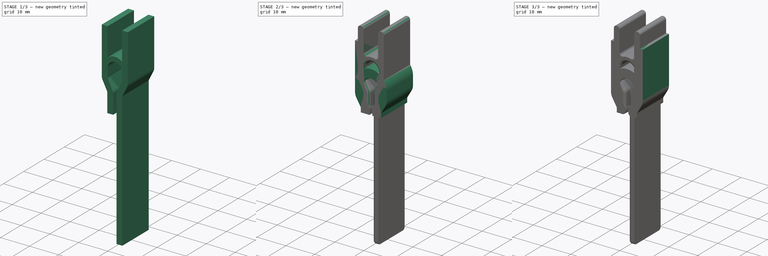
[diagram: build sequence overview — one tinted view per stage of 3, left to right]
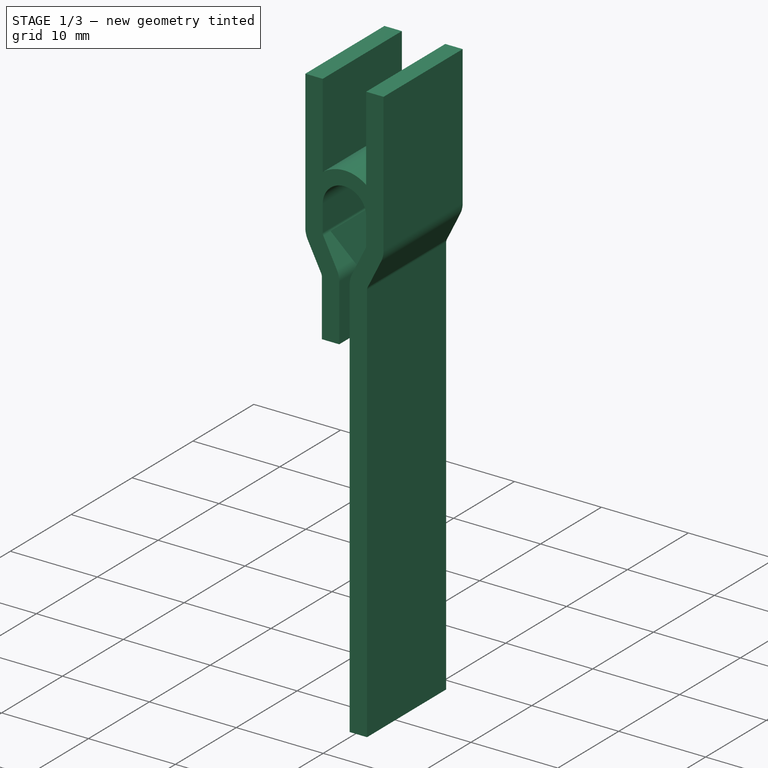
[diagram: stage 1 of 3 — iso view after this stage's code; geometry added in this stage tinted green]
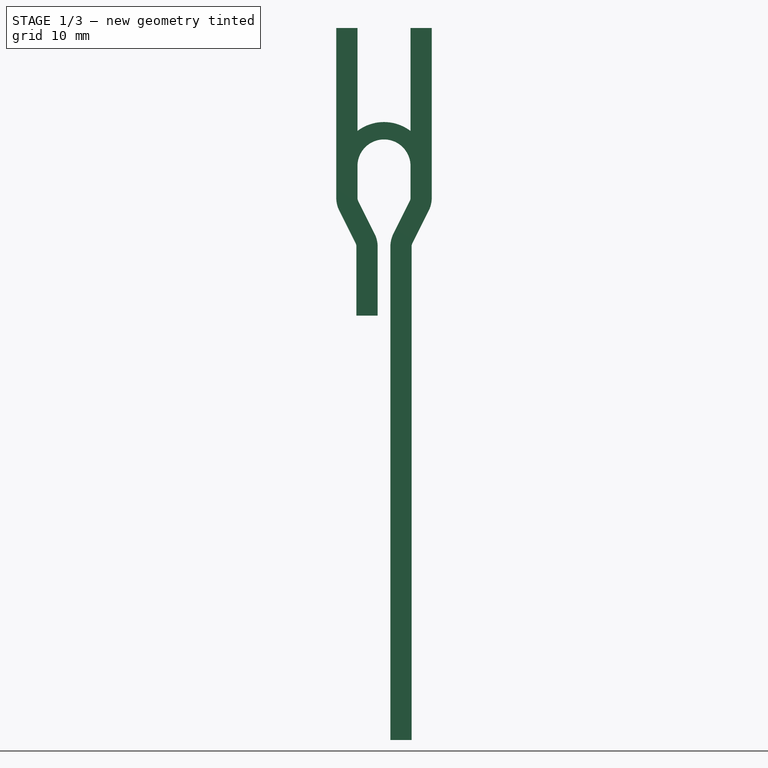
[diagram: stage 1 of 3 — front view after this stage's code; geometry added in this stage tinted green]
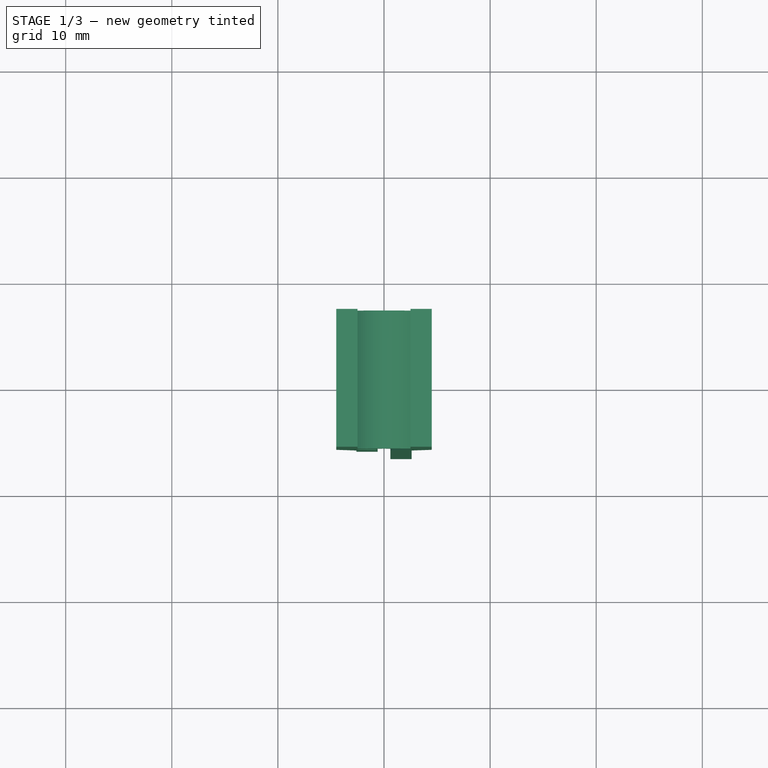
[diagram: stage 1 of 3 — top view after this stage's code; geometry added in this stage tinted green]
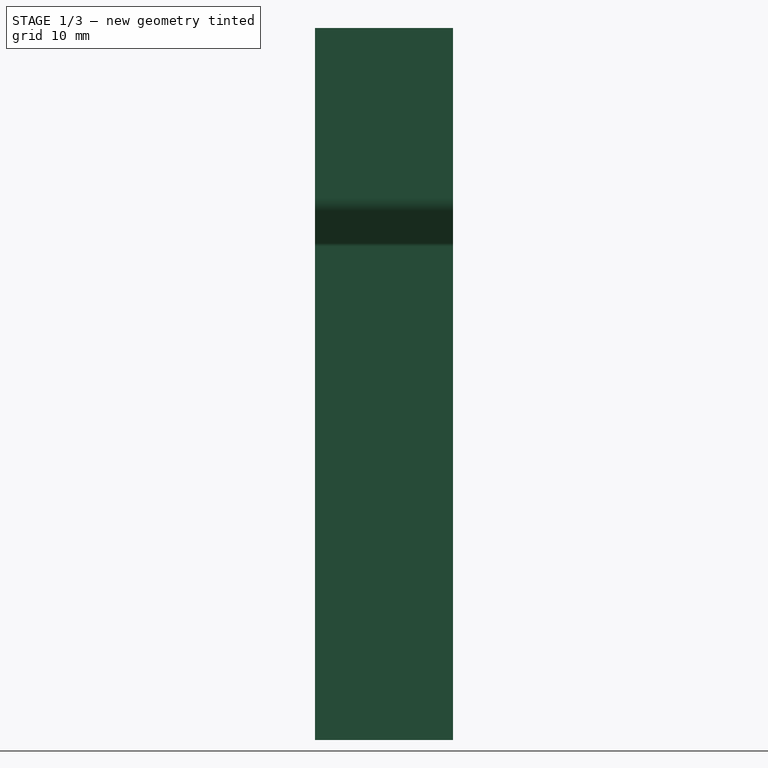
[diagram: stage 1 of 3 — right view after this stage's code; geometry added in this stage tinted green]
FCSTD DOCUMENT  (FreeCAD 0.18.4R)
Label: CurtainClip2
License: All rights reserved
LicenseURL: http://en.wikipedia.org/wiki/All_rights_reserved
objects: Sketcher::SketchObject×8, PartDesign::Plane×3, PartDesign::Pad×3, PartDesign::Fillet×2, PartDesign::Body×2, PartDesign::AdditivePipe×1, PartDesign::SubtractiveLoft×1
note: 25 computed .brp shape members not serialized (recipe doc carries the construction recipe); baked Part::Feature solids carry a one-line shape summary decoded from their .brp

FEATURE [PartDesign::Body] Body
  Group = -> [Sketch,Sketch001,AdditivePipe,DatumPlane,DatumPlane001,Sketch002,Pad,DatumPlane002,Sketch003,Pad001,Fillet]
  Origin = -> Origin
  Tip = -> Fillet
FEATURE [Sketcher::SketchObject] Sketch004
  MapMode = 5
  Placement = pos=(0,0,0) rot=(1,0,0;1.5708rad)
  Support = -> [XZ_Plane002]
  sketch-geometry (35):
    g0: LineSegment StartX=-2.5 StartY=17.4 StartZ=0 EndX=-2.5 EndY=27.1 EndZ=0
    g1: LineSegment StartX=-2.5 StartY=27.1 StartZ=0 EndX=-4.5 EndY=27.1 EndZ=0
    g2: LineSegment StartX=-4.5 StartY=27.1 StartZ=0 EndX=-4.5 EndY=11.1 EndZ=0
    g3: LineSegment StartX=-2.6 StartY=6.5 StartZ=0 EndX=-2.6 EndY=0 EndZ=0
    g4: LineSegment StartX=-2.6 StartY=0 StartZ=0 EndX=-0.6 EndY=0 EndZ=0
    g5: LineSegment StartX=-0.6 StartY=0 StartZ=0 EndX=-0.6 EndY=6.5 EndZ=0
    g6: LineSegment StartX=-2.5 StartY=11.1 StartZ=0 EndX=-2.5 EndY=14.1 EndZ=0
    g7: LineSegment StartX=2.5 StartY=17.4 StartZ=0 EndX=2.5 EndY=27.1 EndZ=0
    g8: LineSegment StartX=2.5 StartY=27.1 StartZ=0 EndX=4.5 EndY=27.1 EndZ=0
    g9: LineSegment StartX=4.5 StartY=27.1 StartZ=0 EndX=4.5 EndY=11.1 EndZ=0
    g10: LineSegment StartX=2.6 StartY=6.5 StartZ=0 EndX=2.6 EndY=-40 EndZ=0
    g11: LineSegment StartX=2.6 StartY=-40 StartZ=0 EndX=0.6 EndY=-40 EndZ=0
    g12: LineSegment StartX=0.6 StartY=-40 StartZ=0 EndX=0.6 EndY=6.5 EndZ=0
    g13: LineSegment StartX=2.5 StartY=11.1 StartZ=0 EndX=2.5 EndY=14.1 EndZ=0
    g14: ArcOfCircle CenterX=0 CenterY=14.1 CenterZ=0 NormalX=0 NormalY=0 NormalZ=1 AngleXU=0 Radius=2.5 StartAngle=1.3e-15 EndAngle=3.14159
    g15: ArcOfCircle CenterX=0 CenterY=14.1 CenterZ=0 NormalX=0 NormalY=0 NormalZ=1 AngleXU=0 Radius=4.14005 StartAngle=0.922464 EndAngle=2.21913
    g16: LineSegment [constr] StartX=-2.5 StartY=14.1 StartZ=0 EndX=-2.5 EndY=17.4 EndZ=0
    g17: LineSegment [constr] StartX=2.5 StartY=14.1 StartZ=0 EndX=2.5 EndY=17.4 EndZ=0
    g18: ArcOfCircle CenterX=-1.8 CenterY=11.1 CenterZ=0 NormalX=0 NormalY=0 NormalZ=1 AngleXU=0 Radius=0.7 StartAngle=3.14159 EndAngle=3.60558
    g19: ArcOfCircle CenterX=-3.3 CenterY=6.5 CenterZ=0 NormalX=0 NormalY=0 NormalZ=1 AngleXU=0 Radius=2.7 StartAngle=2e-16 EndAngle=0.463989
    g20: LineSegment StartX=-2.42599 StartY=10.7867 StartZ=0 EndX=-0.885459 EndY=7.7083 EndZ=0
    g21: ArcOfCircle CenterX=-3.3 CenterY=6.5 CenterZ=0 NormalX=0 NormalY=0 NormalZ=1 AngleXU=0 Radius=0.7 StartAngle=1e-16 EndAngle=0.463989
    g22: LineSegment [constr] StartX=-3.3 StartY=6.5 StartZ=0 EndX=-0.885459 EndY=7.7083 EndZ=0
    g23: LineSegment StartX=-2.67401 StartY=6.81326 StartZ=0 EndX=-4.21454 EndY=9.8917 EndZ=0
    g24: LineSegment [constr] StartX=-4.21454 StartY=9.8917 StartZ=0 EndX=-1.8 EndY=11.1 EndZ=0
    g25: ArcOfCircle CenterX=-1.8 CenterY=11.1 CenterZ=0 NormalX=0 NormalY=0 NormalZ=1 AngleXU=0 Radius=2.7 StartAngle=3.14159 EndAngle=3.60558
    g26: LineSegment [constr] StartX=-2.5 StartY=14.1 StartZ=0 EndX=2.5 EndY=14.1 EndZ=0
    g27: LineSegment [constr] StartX=2.5 StartY=11.1 StartZ=0 EndX=4.5 EndY=11.1 EndZ=0
    g28: ArcOfCircle CenterX=3.3 CenterY=6.5 CenterZ=0 NormalX=0 NormalY=0 NormalZ=1 AngleXU=0 Radius=0.7 StartAngle=2.6776 EndAngle=3.14159
    g29: LineSegment StartX=2.67401 StartY=6.81326 StartZ=0 EndX=4.21454 EndY=9.8917 EndZ=0
    g30: LineSegment StartX=0.885459 StartY=7.7083 StartZ=0 EndX=2.42599 EndY=10.7867 EndZ=0
    g31: ArcOfCircle CenterX=1.8 CenterY=11.1 CenterZ=0 NormalX=0 NormalY=0 NormalZ=1 AngleXU=0 Radius=0.7 StartAngle=5.8192 EndAngle=6.28319
    g32: ArcOfCircle CenterX=1.8 CenterY=11.1 CenterZ=0 NormalX=0 NormalY=0 NormalZ=1 AngleXU=0 Radius=2.7 StartAngle=5.8192 EndAngle=6.28319
    g33: ArcOfCircle CenterX=3.3 CenterY=6.5 CenterZ=0 NormalX=0 NormalY=0 NormalZ=1 AngleXU=0 Radius=2.7 StartAngle=2.6776 EndAngle=3.14159
    g34: LineSegment [constr] StartX=-1.8 StartY=11.1 StartZ=0 EndX=-4.5 EndY=11.1 EndZ=0
  constraints (94):
    c: Vertical(g0)
    c: Coincident(g0,g1)
    c: Horizontal(g1)
    c: Coincident(g1,g2)
    c: Vertical(g2)
    c: PointOnObject(g3,g-1)
    c: Vertical(g3)
    c: Coincident(g3,g4)
    c: PointOnObject(g4,g-1)
    c: Coincident(g4,g5)
    c: Vertical(g5)
    c: Vertical(g6)
    c: Vertical(g7)
    c: Coincident(g7,g8)
    c: Horizontal(g8)
    c: Coincident(g8,g9)
    c: Vertical(g9)
    c: Vertical(g10)
    c: Coincident(g10,g11)
    c: Coincident(g11,g12)
    c: Vertical(g12)
    c: Vertical(g13)
    c: PointOnObject(g14,g-2)
    c: Coincident(g14,g6)
    c: Coincident(g14,g13)
    c: Coincident(g15,g7)
    c: Coincident(g15,g0)
    c: Coincident(g14,g15)
    c: Coincident(g16,g6)
    c: Coincident(g16,g0)
    c: Coincident(g17,g13)
    c: Coincident(g17,g7)
    c: Vertical(g17)
    c: Vertical(g16)
    c: Radius(g14) = 2.5
    c: Tangent(g5,g19) = -1.5708
    c: DistanceX(g1,g1) = 2
    c: Equal(g1,g8)
    c: Equal(g8,g11)
    c: Equal(g11,g4)
    c: Tangent(g18,g20) = -1.5708
    c: Tangent(g19,g20) = 1.5708
    c: DistanceX(g4,g11) = 1.2  'Gap'
    c: Equal(g3,g5)
    c: Coincident(g21,g19)
    c: Coincident(g22,g19)
    c: Coincident(g22,g19)
    c: PointOnObject(g21,g22)
    c: Coincident(g23,g21)
    c: Coincident(g24,g23)
    c: Coincident(g24,g18)
    c: PointOnObject(g18,g24)
    c: Radius(g18) = 0.7
    c: Coincident(g25,g18)
    c: Coincident(g25,g23)
    c: Equal(g21,g18)
    c: DistanceY(g2,g2) = 16
    c: Equal(g2,g9)
    c: Equal(g0,g7)
    c: DistanceY(g0,g0) = 9.7
    c: Coincident(g26,g6)
    c: Coincident(g26,g13)
    c: Horizontal(g26)
    c: PointOnObject(g14,g26)
    c: Coincident(g27,g13)
    c: Coincident(g27,g9)
    c: Horizontal(g27)
    c: Tangent(g10,g28) = -1.5708
    c: Equal(g28,g21)
    c: Equal(g12,g10)
    c: Coincident(g31,g13)
    c: Coincident(g32,g31)
    c: Coincident(g32,g9)
    c: Coincident(g33,g28)
    c: Coincident(g33,g12)
    c: Tangent(g30,g33) = 1.5708
    c: Tangent(g30,g31) = -1.5708
    c: Tangent(g29,g32) = -1.5708
    c: Tangent(g28,g29) = 1.5708
    c: Tangent(g25,g2) = -1.5708
    c: Coincident(g34,g18)
    c: Coincident(g34,g2)
    c: PointOnObject(g6,g34)
    c: Coincident(g18,g6)
    c: PointOnObject(g31,g27)
    c: Equal(g31,g18)
    c: Horizontal(g11)
    c: DistanceY(g3,g3) = 6.5  'TightHeight'
    c: Symmetric(g5,g12,g-2)
    c: DistanceY(g11,g3) = 40  'Downhang'
    c: DistanceY(g3,g2) = 4.6
    c: DistanceY(g3,g6) = 7.6
    c: Coincident(g21,g3)
    c: DistanceY(g3,g2) = 11.1  'GripHeight'
FEATURE [PartDesign::Pad] Pad002
  Length = 13
  Length2 = 100
  Midplane = true
  Placement = pos=(0,0,0) rot=(1,0,0;1.5708rad)
  Profile = -> Sketch004
  Type = 0
FEATURE [Sketcher::SketchObject] Sketch005
  AttachmentOffset = pos=(0,0,40) rot=(0,0,1;0rad)
  MapMode = 5
  Placement = pos=(0,0,-40) rot=(0,1,0;3.14159rad)
  Support = -> [XY_Plane002]
  expr: AttachmentOffset.Base.z = Sketch004.Constraints.Downhang
  expr: Constraints[17] = Sketch004.Constraints.Gap
  sketch-geometry (16):
    g0: LineSegment [constr] StartX=-1.6 StartY=2 StartZ=0 EndX=-0.6 EndY=2 EndZ=0
    g1: LineSegment StartX=1.6 StartY=2 StartZ=0 EndX=1.6 EndY=-2 EndZ=0
    g2: LineSegment [constr] StartX=1.6 StartY=-2 StartZ=0 EndX=0.6 EndY=-2 EndZ=0
    g3: LineSegment StartX=-1.6 StartY=-2 StartZ=0 EndX=-1.6 EndY=2 EndZ=0
    g4: LineSegment StartX=-0.6 StartY=3 StartZ=0 EndX=0.6 EndY=3 EndZ=0
    g5: LineSegment [constr] StartX=0.6 StartY=3 StartZ=0 EndX=0.6 EndY=2 EndZ=0
    g6: LineSegment StartX=0.6 StartY=-3 StartZ=0 EndX=-0.6 EndY=-3 EndZ=0
    g7: LineSegment [constr] StartX=-0.6 StartY=-3 StartZ=0 EndX=-0.6 EndY=-2 EndZ=0
    g8: LineSegment [constr] StartX=-0.6 StartY=2 StartZ=0 EndX=-0.6 EndY=3 EndZ=0
    g9: LineSegment [constr] StartX=0.6 StartY=-2 StartZ=0 EndX=0.6 EndY=-3 EndZ=0
    g10: LineSegment [constr] StartX=0.6 StartY=2 StartZ=0 EndX=1.6 EndY=2 EndZ=0
    g11: LineSegment [constr] StartX=-0.6 StartY=-2 StartZ=0 EndX=-1.6 EndY=-2 EndZ=0
    g12: LineSegment StartX=-1.6 StartY=2 StartZ=0 EndX=-0.6 EndY=3 EndZ=0
    g13: LineSegment StartX=0.6 StartY=3 StartZ=0 EndX=1.6 EndY=2 EndZ=0
    g14: LineSegment StartX=-1.6 StartY=-2 StartZ=0 EndX=-0.6 EndY=-3 EndZ=0
    g15: LineSegment StartX=0.6 StartY=-3 StartZ=0 EndX=1.6 EndY=-2 EndZ=0
  constraints (39):
    c: Coincident(g10,g1)
    c: Coincident(g1,g2)
    c: Coincident(g11,g3)
    c: Coincident(g3,g0)
    c: Horizontal(g0)
    c: Vertical(g1)
    c: Vertical(g3)
    c: DistanceY(g3,g3) = 4
    c: Coincident(g4,g5)
    c: Coincident(g9,g6)
    c: Coincident(g6,g7)
    c: Coincident(g8,g4)
    c: Horizontal(g4)
    c: Horizontal(g6)
    c: Vertical(g5)
    c: Vertical(g7)
    c: Symmetric(g6,g4,g-1)
    c: DistanceX(g4,g4) = 1.2
    c: Tangent(g7,g8)
    c: Tangent(g5,g9)
    c: Coincident(g0,g8)
    c: Coincident(g10,g5)
    c: Tangent(g0,g10)
    c: Coincident(g2,g9)
    c: Coincident(g11,g7)
    c: Tangent(g2,g11)
    c: Equal(g8,g7)
    c: Equal(g1,g3)
    c: Equal(g0,g8)
    c: Equal(g0,g10)
    c: Coincident(g12,g3)
    c: Coincident(g12,g4)
    c: Coincident(g13,g4)
    c: Coincident(g13,g1)
    c: Coincident(g14,g3)
    c: Coincident(g14,g6)
    c: Coincident(g15,g6)
    c: Coincident(g15,g1)
    c: DistanceX(g3,g4) = 1
FEATURE [Sketcher::SketchObject] Sketch006
  AttachmentOffset = pos=(0,0,-11.1) rot=(0,0,1;0rad)
  MapMode = 5
  Placement = pos=(0,0,11.1) rot=(0,1,0;3.14159rad)
  Support = -> [XY_Plane002]
  expr: AttachmentOffset.Base.z = -Sketch004.Constraints.GripHeight
  sketch-geometry (16):
    g0: LineSegment [constr] StartX=-2.5 StartY=5.5 StartZ=0 EndX=-0.5 EndY=5.5 EndZ=0
    g1: LineSegment StartX=2.5 StartY=5.5 StartZ=0 EndX=2.5 EndY=-5.5 EndZ=0
    g2: LineSegment [constr] StartX=2.5 StartY=-5.5 StartZ=0 EndX=0.5 EndY=-5.5 EndZ=0
    g3: LineSegment StartX=-2.5 StartY=-5.5 StartZ=0 EndX=-2.5 EndY=5.5 EndZ=0
    g4: LineSegment StartX=-0.5 StartY=7.5 StartZ=0 EndX=0.5 EndY=7.5 EndZ=0
    g5: LineSegment [constr] StartX=0.5 StartY=7.5 StartZ=0 EndX=0.5 EndY=5.5 EndZ=0
    g6: LineSegment StartX=0.5 StartY=-7.5 StartZ=0 EndX=-0.5 EndY=-7.5 EndZ=0
    g7: LineSegment [constr] StartX=-0.5 StartY=-7.5 StartZ=0 EndX=-0.5 EndY=-5.5 EndZ=0
    g8: LineSegment [constr] StartX=-0.5 StartY=5.5 StartZ=0 EndX=-0.5 EndY=7.5 EndZ=0
    g9: LineSegment [constr] StartX=0.5 StartY=-5.5 StartZ=0 EndX=0.5 EndY=-7.5 EndZ=0
    g10: LineSegment [constr] StartX=0.5 StartY=5.5 StartZ=0 EndX=2.5 EndY=5.5 EndZ=0
    g11: LineSegment [constr] StartX=-0.5 StartY=-5.5 StartZ=0 EndX=-2.5 EndY=-5.5 EndZ=0
    g12: LineSegment StartX=-2.5 StartY=5.5 StartZ=0 EndX=-0.5 EndY=7.5 EndZ=0
    g13: LineSegment StartX=0.5 StartY=7.5 StartZ=0 EndX=2.5 EndY=5.5 EndZ=0
    g14: LineSegment StartX=-2.5 StartY=-5.5 StartZ=0 EndX=-0.5 EndY=-7.5 EndZ=0
    g15: LineSegment StartX=0.5 StartY=-7.5 StartZ=0 EndX=2.5 EndY=-5.5 EndZ=0
  constraints (39):
    c: Coincident(g10,g1)
    c: Coincident(g1,g2)
    c: Coincident(g11,g3)
    c: Coincident(g3,g0)
    c: Horizontal(g0)
    c: Vertical(g1)
    c: Vertical(g3)
    c: DistanceY(g3,g3) = 11
    c: Coincident(g4,g5)
    c: Coincident(g9,g6)
    c: Coincident(g6,g7)
    c: Coincident(g8,g4)
    c: Horizontal(g4)
    c: Horizontal(g6)
    c: Vertical(g5)
    c: Vertical(g7)
    c: Symmetric(g6,g4,g-1)
    c: DistanceX(g4,g4) = 1
    c: Tangent(g7,g8)
    c: Tangent(g5,g9)
    c: Coincident(g0,g8)
    c: Coincident(g10,g5)
    c: Tangent(g0,g10)
    c: Coincident(g2,g9)
    c: Coincident(g11,g7)
    c: Tangent(g2,g11)
    c: Equal(g8,g7)
    c: Equal(g1,g3)
    c: DistanceX(g0,g1) = 5
    c: Equal(g0,g8)
    c: Equal(g0,g10)
    c: Coincident(g12,g3)
    c: Coincident(g12,g4)
    c: Coincident(g13,g4)
    c: Coincident(g13,g1)
    c: Coincident(g14,g3)
    c: Coincident(g14,g6)
    c: Coincident(g15,g6)
    c: Coincident(g15,g1)
FEATURE [Sketcher::SketchObject] Sketch007
  AttachmentOffset = pos=(0,0,-6.5) rot=(0,0,1;0rad)
  MapMode = 5
  Placement = pos=(0,0,6.5) rot=(0,1,0;3.14159rad)
  Support = -> [XY_Plane002]
  expr: AttachmentOffset.Base.z = -Sketch004.Constraints.TightHeight
  expr: Constraints[17] = Sketch004.Constraints.Gap
  sketch-geometry (16):
    g0: LineSegment [constr] StartX=-1.6 StartY=2 StartZ=0 EndX=-0.6 EndY=2 EndZ=0
    g1: LineSegment StartX=1.6 StartY=2 StartZ=0 EndX=1.6 EndY=-2 EndZ=0
    g2: LineSegment [constr] StartX=1.6 StartY=-2 StartZ=0 EndX=0.6 EndY=-2 EndZ=0
    g3: LineSegment StartX=-1.6 StartY=-2 StartZ=0 EndX=-1.6 EndY=2 EndZ=0
    g4: LineSegment StartX=-0.6 StartY=3 StartZ=0 EndX=0.6 EndY=3 EndZ=0
    g5: LineSegment [constr] StartX=0.6 StartY=3 StartZ=0 EndX=0.6 EndY=2 EndZ=0
    g6: LineSegment StartX=0.6 StartY=-3 StartZ=0 EndX=-0.6 EndY=-3 EndZ=0
    g7: LineSegment [constr] StartX=-0.6 StartY=-3 StartZ=0 EndX=-0.6 EndY=-2 EndZ=0
    g8: LineSegment [constr] StartX=-0.6 StartY=2 StartZ=0 EndX=-0.6 EndY=3 EndZ=0
    g9: LineSegment [constr] StartX=0.6 StartY=-2 StartZ=0 EndX=0.6 EndY=-3 EndZ=0
    g10: LineSegment [constr] StartX=0.6 StartY=2 StartZ=0 EndX=1.6 EndY=2 EndZ=0
    g11: LineSegment [constr] StartX=-0.6 StartY=-2 StartZ=0 EndX=-1.6 EndY=-2 EndZ=0
    g12: LineSegment StartX=-1.6 StartY=2 StartZ=0 EndX=-0.6 EndY=3 EndZ=0
    g13: LineSegment StartX=0.6 StartY=3 StartZ=0 EndX=1.6 EndY=2 EndZ=0
    g14: LineSegment StartX=-1.6 StartY=-2 StartZ=0 EndX=-0.6 EndY=-3 EndZ=0
    g15: LineSegment StartX=0.6 StartY=-3 StartZ=0 EndX=1.6 EndY=-2 EndZ=0
  constraints (39):
    c: Coincident(g10,g1)
    c: Coincident(g1,g2)
    c: Coincident(g11,g3)
    c: Coincident(g3,g0)
    c: Horizontal(g0)
    c: Vertical(g1)
    c: Vertical(g3)
    c: DistanceY(g3,g3) = 4
    c: Coincident(g4,g5)
    c: Coincident(g9,g6)
    c: Coincident(g6,g7)
    c: Coincident(g8,g4)
    c: Horizontal(g4)
    c: Horizontal(g6)
    c: Vertical(g5)
    c: Vertical(g7)
    c: Symmetric(g6,g4,g-1)
    c: DistanceX(g4,g4) = 1.2
    c: Tangent(g7,g8)
    c: Tangent(g5,g9)
    c: Coincident(g0,g8)
    c: Coincident(g10,g5)
    c: Tangent(g0,g10)
    c: Coincident(g2,g9)
    c: Coincident(g11,g7)
    c: Tangent(g2,g11)
    c: Equal(g8,g7)
    c: Equal(g1,g3)
    c: Equal(g0,g8)
    c: Equal(g0,g10)
    c: Coincident(g12,g3)
    c: Coincident(g12,g4)
    c: Coincident(g13,g4)
    c: Coincident(g13,g1)
    c: Coincident(g14,g3)
    c: Coincident(g14,g6)
    c: Coincident(g15,g6)
    c: Coincident(g15,g1)
    c: DistanceX(g3,g4) = 1
FEATURE [PartDesign::SubtractiveLoft] SubtractiveLoft
  BaseFeature = -> Pad002
  Closed = false
  Placement = pos=(0,0,0) rot=(1,0,0;1.5708rad)
  Profile = -> Sketch005
  Ruled = true
  Sections = -> [Sketch007,Sketch006]
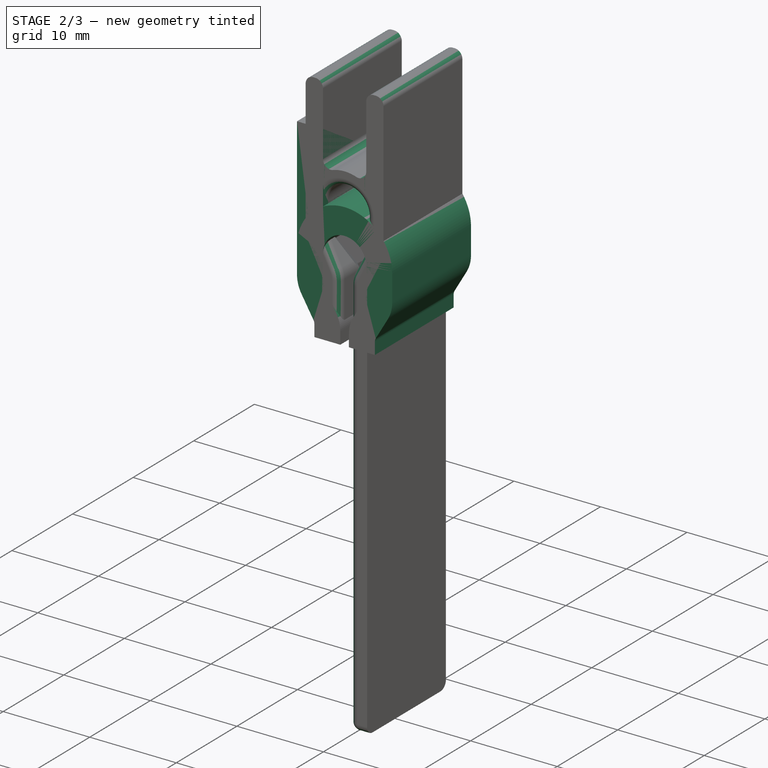
[diagram: stage 2 of 3 — iso view after this stage's code; geometry added in this stage tinted green]
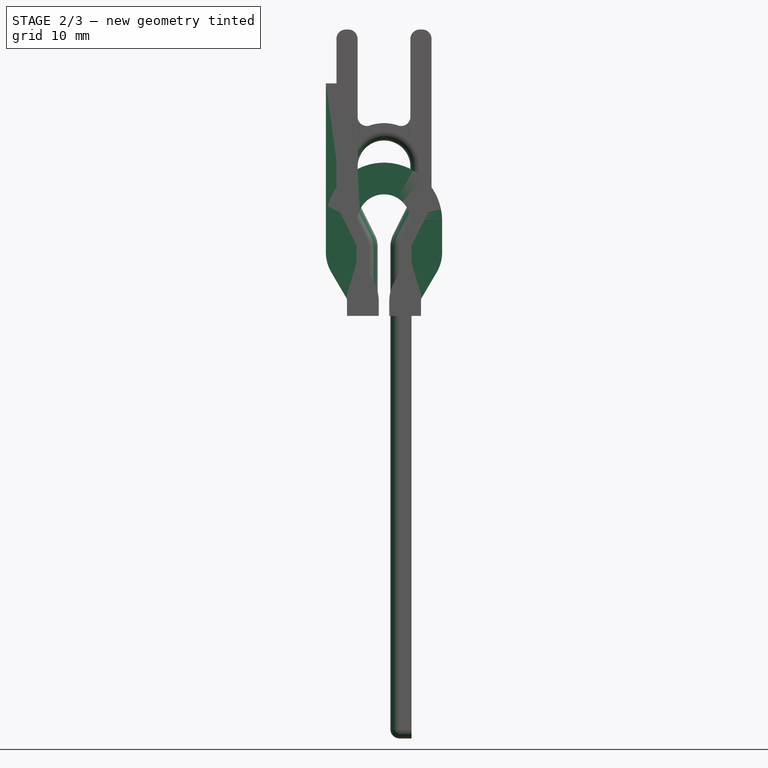
[diagram: stage 2 of 3 — front view after this stage's code; geometry added in this stage tinted green]
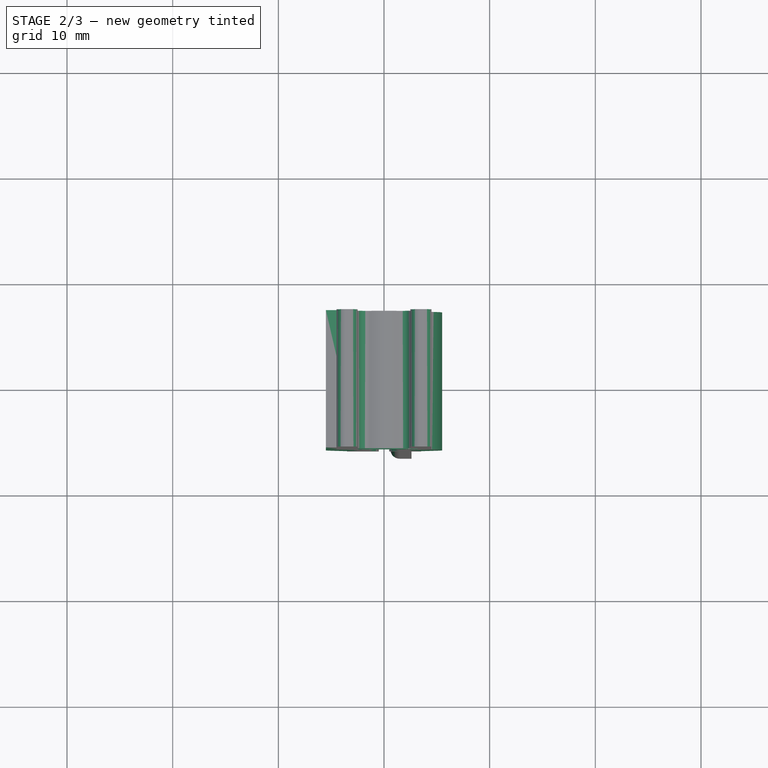
[diagram: stage 2 of 3 — top view after this stage's code; geometry added in this stage tinted green]
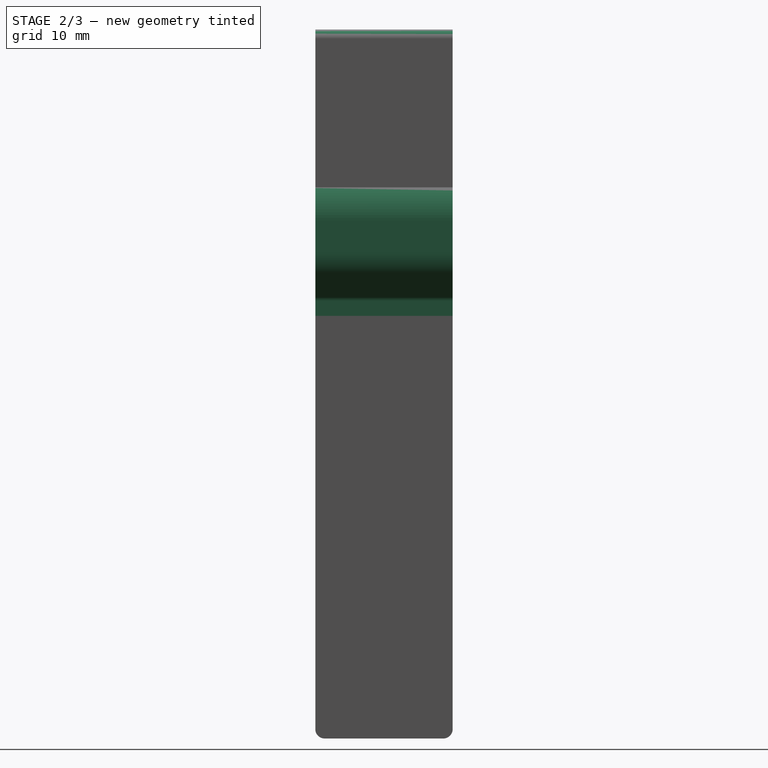
[diagram: stage 2 of 3 — right view after this stage's code; geometry added in this stage tinted green]
FEATURE [Sketcher::SketchObject] Sketch
  MapMode = 5
  Placement = pos=(0,0,0) rot=(1,0,0;1.5708rad)
  Support = -> [XZ_Plane]
  sketch-geometry (12):
    g0: LineSegment StartX=-2 StartY=0 StartZ=0 EndX=-2 EndY=1.4 EndZ=0
    g1: LineSegment StartX=-2.30337 StartY=2.5148 StartZ=0 EndX=-3.69663 EndY=4.8852 EndZ=0
    g2: LineSegment StartX=2 StartY=0 StartZ=0 EndX=2 EndY=1.4 EndZ=0
    g3: LineSegment StartX=2.30337 StartY=2.5148 StartZ=0 EndX=3.69663 EndY=4.8852 EndZ=0
    g4: ArcOfCircle CenterX=0 CenterY=9 CenterZ=0 NormalX=0 NormalY=0 NormalZ=1 AngleXU=0 Radius=4 StartAngle=2e-16 EndAngle=3.14159
    g5: ArcOfCircle CenterX=-4.2 CenterY=1.4 CenterZ=0 NormalX=0 NormalY=0 NormalZ=1 AngleXU=0 Radius=2.2 StartAngle=0 EndAngle=0.531384
    g6: ArcOfCircle CenterX=4.2 CenterY=1.4 CenterZ=0 NormalX=0 NormalY=0 NormalZ=1 AngleXU=0 Radius=2.2 StartAngle=2.61021 EndAngle=3.14159
    g7: GeomPoint X=0 Y=13 Z=0
    g8: LineSegment StartX=-4 StartY=6 StartZ=0 EndX=-4 EndY=9 EndZ=0
    g9: LineSegment StartX=4 StartY=6 StartZ=0 EndX=4 EndY=9 EndZ=0
    g10: ArcOfCircle CenterX=-1.8 CenterY=6 CenterZ=0 NormalX=0 NormalY=0 NormalZ=1 AngleXU=0 Radius=2.2 StartAngle=3.14159 EndAngle=3.67298
    g11: ArcOfCircle CenterX=1.8 CenterY=6 CenterZ=0 NormalX=0 NormalY=0 NormalZ=1 AngleXU=0 Radius=2.2 StartAngle=5.7518 EndAngle=6.28319
  constraints (30):
    c: Vertical(g0)
    c: Vertical(g2)
    c: Equal(g3,g1)
    c: Symmetric(g0,g2,g-1)
    c: Equal(g0,g2)
    c: Tangent(g0,g5) = -1.5708
    c: Tangent(g1,g5) = -1.5708
    c: Tangent(g2,g6) = 1.5708
    c: Tangent(g3,g6) = 1.5708
    c: Equal(g5,g6)
    c: PointOnObject(g4,g-2)
    c: DistanceX(g0,g2) = 4
    c: PointOnObject(g7,g-2)
    c: PointOnObject(g7,g4)
    c: PointOnObject(g0,g-1)
    c: Vertical(g8)
    c: Vertical(g9)
    c: Tangent(g9,g4) = -1.5708
    c: Tangent(g8,g4) = 1.5708
    c: DistanceX(g4,g4) = 8
    c: Tangent(g1,g10) = 1.5708
    c: Tangent(g8,g10) = 1.5708
    c: Tangent(g3,g11) = -1.5708
    c: Tangent(g9,g11) = -1.5708
    c: Equal(g10,g11)
    c: Equal(g11,g6)
    c: DistanceY(g0,g7) = 13
    c: DistanceY(g8,g8) = 3
    c: DistanceY(g0,g0) = 1.4
    c: Radius(g10) = 2.2
FEATURE [PartDesign::Plane] DatumPlane
  Length = 24
  MapMode = 7
  Placement = pos=(-2,0,0) rot=(0,1,0;3.14159rad)
  ResizeMode = 0
  Support = -> [Sketch]
  Width = 24
FEATURE [Sketcher::SketchObject] Sketch001
  MapMode = 5
  Placement = pos=(-2,0,0) rot=(0,1,0;3.14159rad)
  Support = -> [DatumPlane]
  sketch-geometry (8):
    g0: LineSegment StartX=-1.5 StartY=6.5 StartZ=0 EndX=1.5 EndY=6.5 EndZ=0
    g1: LineSegment StartX=1.5 StartY=6.5 StartZ=0 EndX=1.5 EndY=-6.5 EndZ=0
    g2: LineSegment StartX=1.5 StartY=-6.5 StartZ=0 EndX=-1.5 EndY=-6.5 EndZ=0
    g3: LineSegment StartX=-1.5 StartY=-6.5 StartZ=0 EndX=-1.5 EndY=-3.69679 EndZ=0
    g4: LineSegment StartX=-1.5 StartY=3.69679 StartZ=0 EndX=-1.5 EndY=6.5 EndZ=0
    g5: ArcOfCircle CenterX=-4.30543 CenterY=0 CenterZ=0 NormalX=0 NormalY=0 NormalZ=1 AngleXU=0 Radius=4.30543 StartAngle=5.51227 EndAngle=7.0541
    g6: ArcOfCircle CenterX=-0.5 CenterY=-3.69679 CenterZ=0 NormalX=0 NormalY=0 NormalZ=1 AngleXU=0 Radius=1 StartAngle=2.37067 EndAngle=3.14159
    g7: ArcOfCircle CenterX=-0.5 CenterY=3.69679 CenterZ=0 NormalX=0 NormalY=0 NormalZ=1 AngleXU=0 Radius=1 StartAngle=3.14159 EndAngle=3.91251
  constraints (21):
    c: Coincident(g0,g1)
    c: Coincident(g1,g2)
    c: Coincident(g2,g3)
    c: Coincident(g4,g0)
    c: Horizontal(g0)
    c: Horizontal(g2)
    c: Vertical(g1)
    c: Vertical(g3)
    c: DistanceY(g3,g4) = 13
    c: DistanceX(g0,g0) = 3
    c: Symmetric(g0,g1,g-1)
    c: Tangent(g3,g4)
    c: PointOnObject(g5,g-1)
    c: Equal(g7,g6)
    c: Tangent(g3,g6) = 1.5708
    c: Tangent(g5,g6) = 1.5708
    c: Tangent(g5,g7) = 1.5708
    c: Tangent(g4,g7) = 1.5708
    c: Radius(g7) = 1
    c: DistanceY(g5,g5) = 6
    c: PointOnObject(g-1,g5)
FEATURE [PartDesign::AdditivePipe] AdditivePipe
  AuxilleryCurvelinear = true
  AuxillerySpineTangent = false
  Binormal = (0,0,0)
  Mode = 0
  Placement = pos=(-2,0,0) rot=(0,1,0;3.14159rad)
  Profile = -> Sketch001
  Spine = -> Sketch
  SpineTangent = false
  Transformation = 1
  Transition = 0
FEATURE [PartDesign::Plane] DatumPlane001
  Length = 24
  MapMode = 7
  Placement = pos=(-4,1.3e-15,6) rot=(0,1,0;3.14159rad)
  ResizeMode = 0
  Support = -> [Sketch]
  Width = 24
FEATURE [Sketcher::SketchObject] Sketch002
  ExternalGeometry = -> [Sketch001]
  MapMode = 5
  Placement = pos=(-4,1.3e-15,6) rot=(0,1,0;3.14159rad)
  Support = -> [DatumPlane001]
  sketch-geometry (4):
    g0: LineSegment StartX=-1.5 StartY=6.5 StartZ=0 EndX=1.5 EndY=6.5 EndZ=0
    g1: LineSegment StartX=1.5 StartY=6.5 StartZ=0 EndX=1.5 EndY=-6.5 EndZ=0
    g2: LineSegment StartX=1.5 StartY=-6.5 StartZ=0 EndX=-1.5 EndY=-6.5 EndZ=0
    g3: LineSegment StartX=-1.5 StartY=-6.5 StartZ=0 EndX=-1.5 EndY=6.5 EndZ=0
  constraints (11):
    c: Coincident(g0,g1)
    c: Coincident(g1,g2)
    c: Coincident(g2,g3)
    c: Coincident(g3,g0)
    c: Horizontal(g0)
    c: Vertical(g1)
    c: Vertical(g3)
    c: Equal(g-3,g3)
    c: Equal(g3,g1)
    c: DistanceX(g0,g0) = 3
    c: Symmetric(g2,g0,g-1)
FEATURE [PartDesign::Pad] Pad
  BaseFeature = -> AdditivePipe
  Length = 16
  Length2 = 100
  Placement = pos=(-2,0,0) rot=(0,1,0;3.14159rad)
  Profile = -> Sketch002
  Reversed = true
  Type = 0
FEATURE [PartDesign::Fillet] Fillet001
  Base = -> SubtractiveLoft [Edge42,Edge72,Edge71,Edge70,Edge69,Edge68,Edge17,Edge54,Edge105,Edge104,Edge103,Edge102,Edge101,Edge29,Edge48,Edge23,Edge61,Edge5,Edge8,Edge62,Edge2,Edge1,Edge128,Edge120,Edge132,Edge100,Edge121,Edge125]
  BaseFeature = -> SubtractiveLoft
  Placement = pos=(0,0,0) rot=(1,0,0;1.5708rad)
  Radius = 0.88
FEATURE [PartDesign::Body] Body002
  Group = -> [Sketch004,Pad002,Sketch005,Sketch007,Sketch006,SubtractiveLoft,Fillet001]
  Origin = -> Origin002
  Tip = -> Fillet001
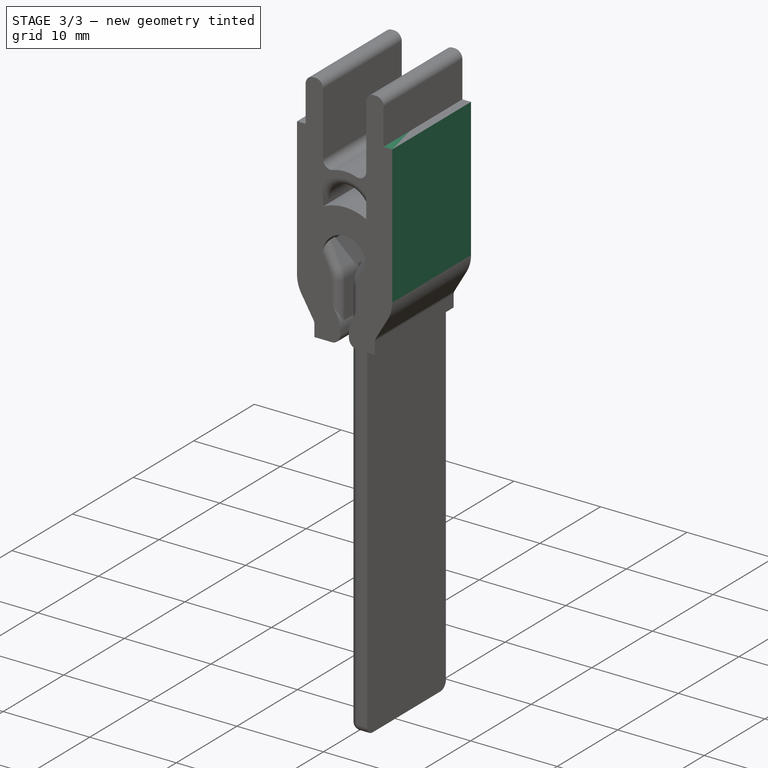
[diagram: stage 3 of 3 — iso view after this stage's code; geometry added in this stage tinted green]
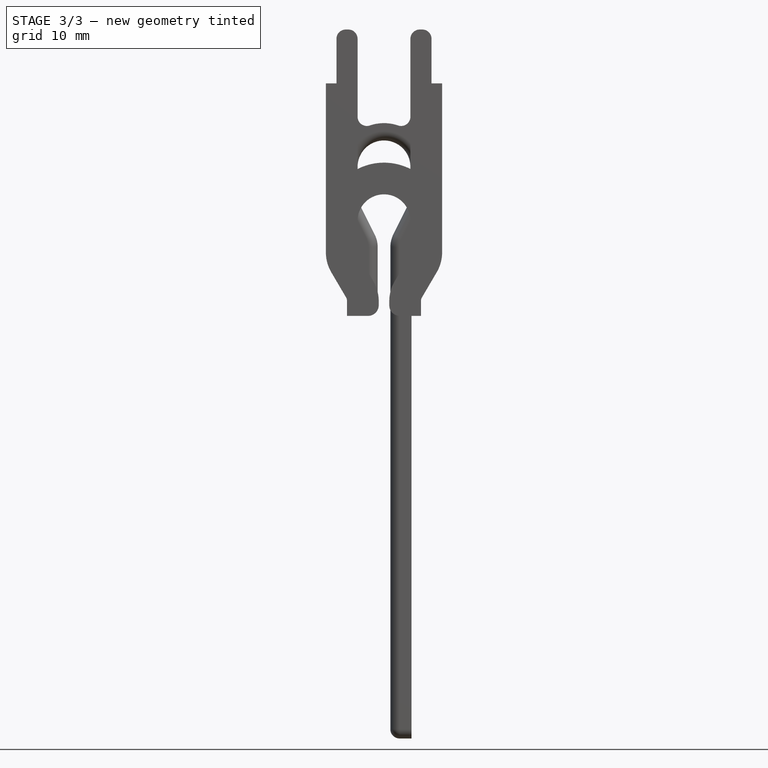
[diagram: stage 3 of 3 — front view after this stage's code; geometry added in this stage tinted green]
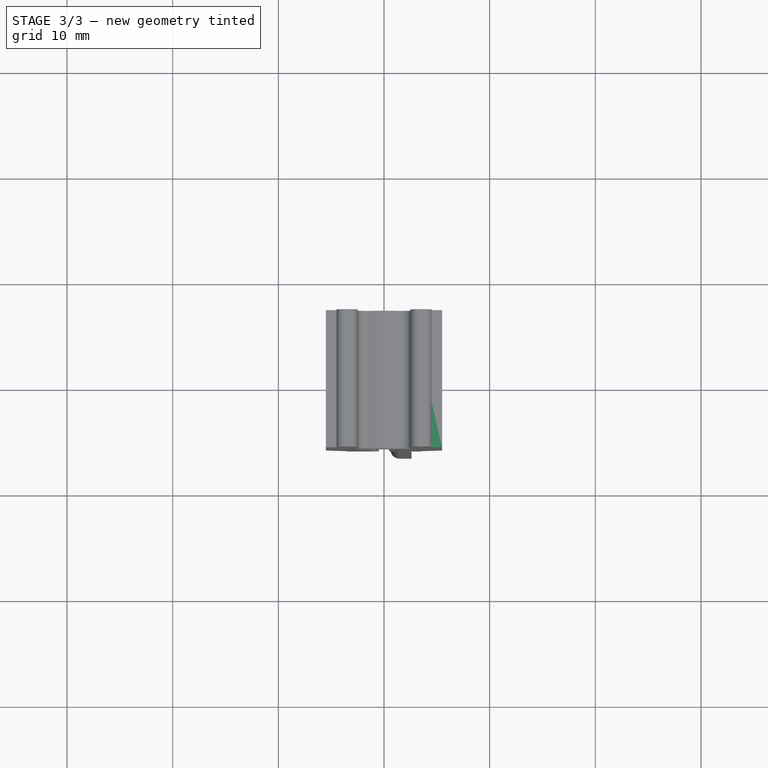
[diagram: stage 3 of 3 — top view after this stage's code; geometry added in this stage tinted green]
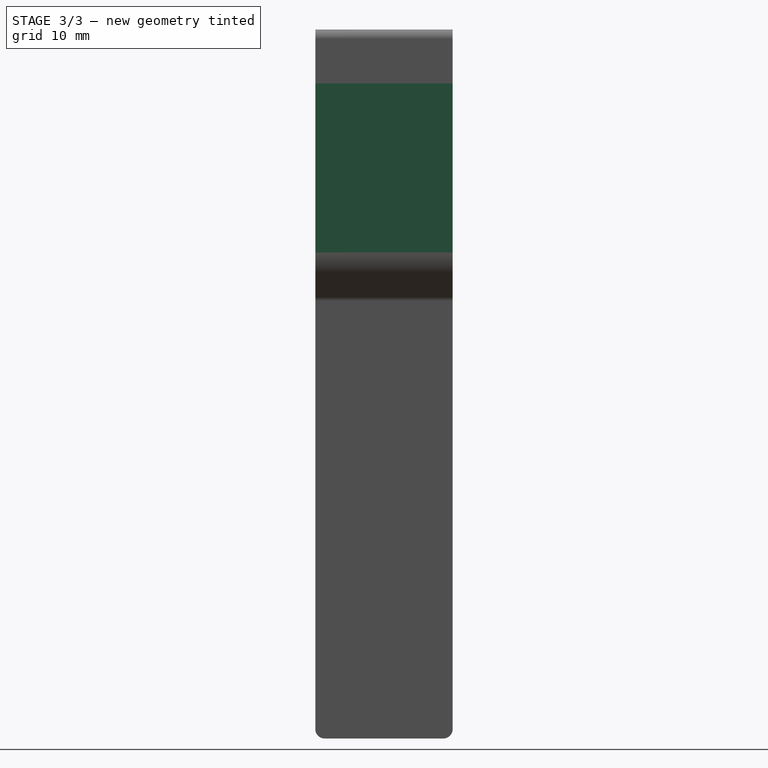
[diagram: stage 3 of 3 — right view after this stage's code; geometry added in this stage tinted green]
FEATURE [PartDesign::Plane] DatumPlane002
  Length = 24
  MapMode = 7
  Placement = pos=(4,1.3e-15,6) rot=(0,1,0;3.14159rad)
  ResizeMode = 0
  Support = -> [Sketch]
  Width = 24
FEATURE [Sketcher::SketchObject] Sketch003
  ExternalGeometry = -> [Sketch001]
  MapMode = 5
  Placement = pos=(4,1.3e-15,6) rot=(0,1,0;3.14159rad)
  Support = -> [DatumPlane002]
  sketch-geometry (4):
    g0: LineSegment StartX=-1.5 StartY=6.5 StartZ=0 EndX=1.5 EndY=6.5 EndZ=0
    g1: LineSegment StartX=1.5 StartY=6.5 StartZ=0 EndX=1.5 EndY=-6.5 EndZ=0
    g2: LineSegment StartX=1.5 StartY=-6.5 StartZ=0 EndX=-1.5 EndY=-6.5 EndZ=0
    g3: LineSegment StartX=-1.5 StartY=-6.5 StartZ=0 EndX=-1.5 EndY=6.5 EndZ=0
  constraints (11):
    c: Coincident(g0,g1)
    c: Coincident(g1,g2)
    c: Coincident(g2,g3)
    c: Coincident(g3,g0)
    c: Horizontal(g0)
    c: Horizontal(g2)
    c: Vertical(g1)
    c: Vertical(g3)
    c: Equal(g1,g-3)
    c: Symmetric(g0,g2,g-1)
    c: Equal(g-4,g0)
FEATURE [PartDesign::Pad] Pad001
  BaseFeature = -> Pad
  Length = 16
  Length2 = 100
  Placement = pos=(-2,0,0) rot=(0,1,0;3.14159rad)
  Profile = -> Sketch003
  Refine = true
  Reversed = true
  Type = 0
  expr: Length = Pad.Length
FEATURE [PartDesign::Fillet] Fillet
  Base = -> Pad001 [Edge7,Edge150]
  BaseFeature = -> Pad001
  Placement = pos=(-2,0,0) rot=(0,1,0;3.14159rad)
  Radius = 1
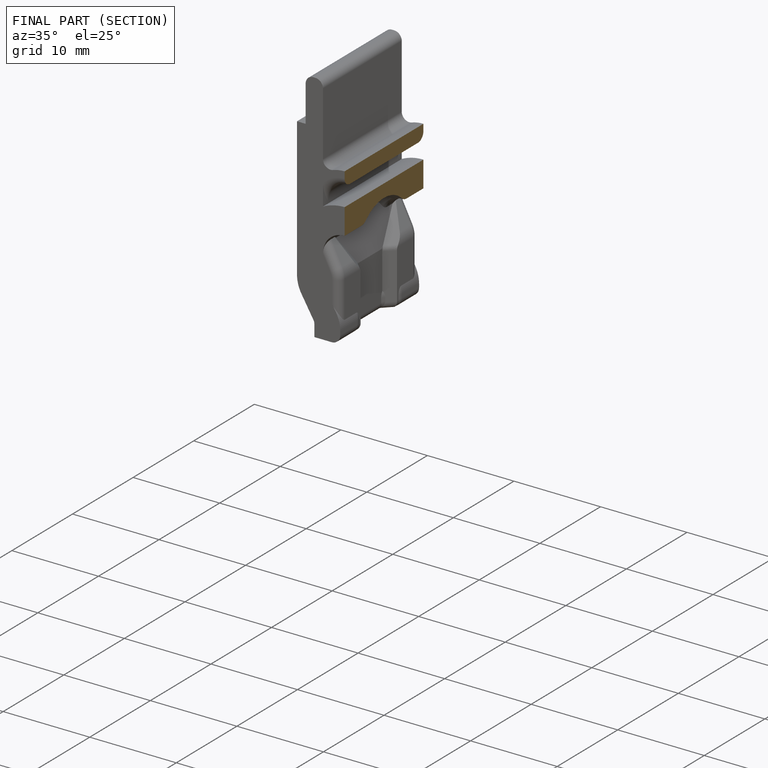
[diagram: finished part — half-section view (interior)]
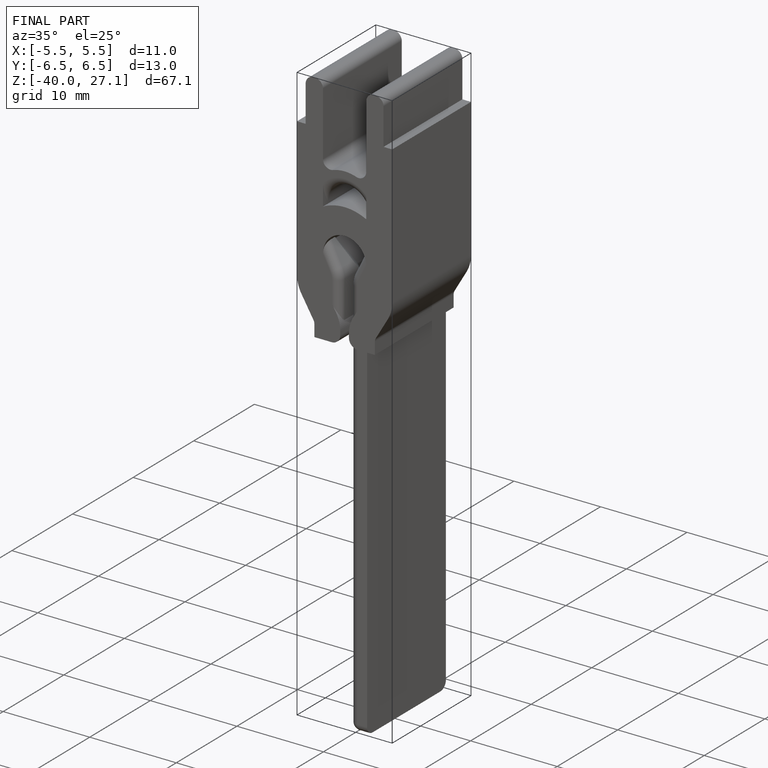
[diagram: finished part — iso view with bounding-box wireframe]
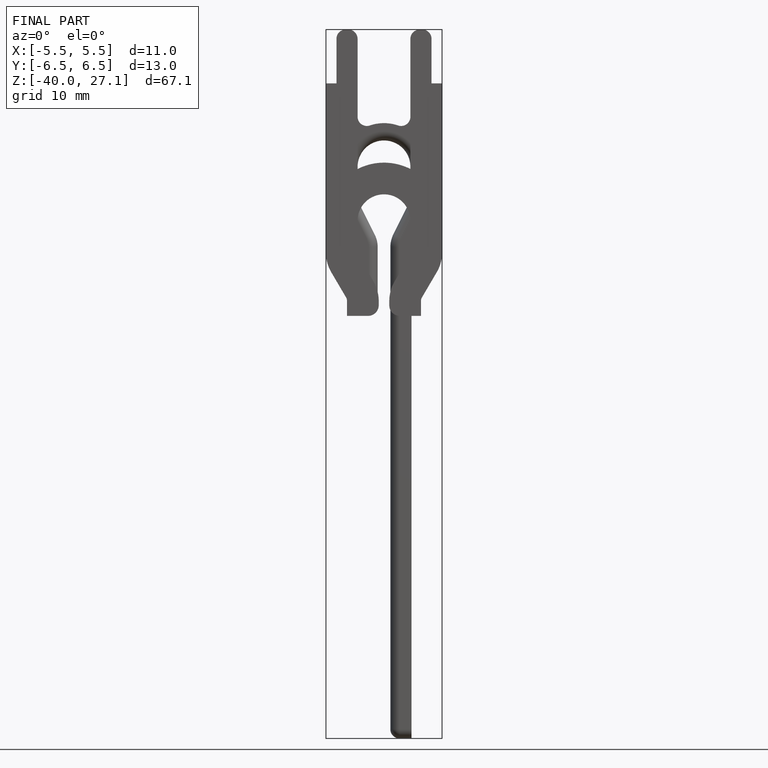
[diagram: finished part — front view with bounding-box wireframe]
